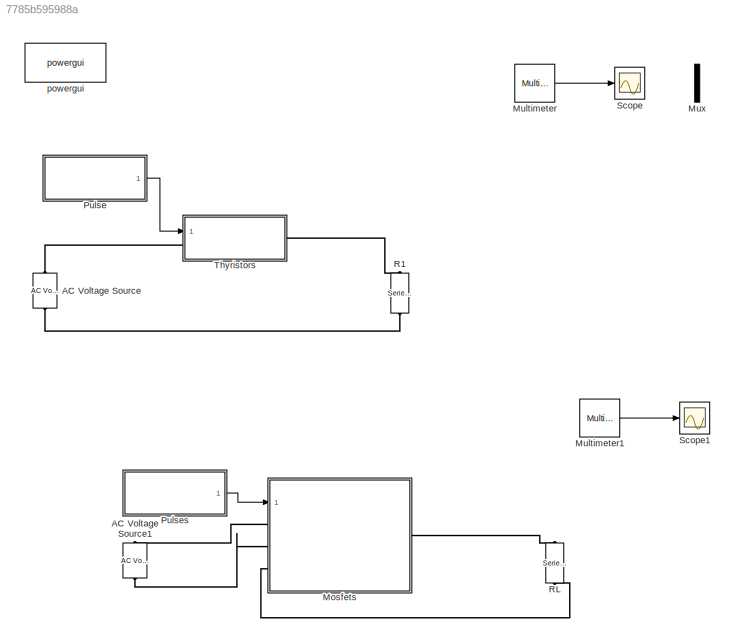
MODEL slx_7785b595988a
KIND model
CONFIG AbsTol = auto
CONFIG EnableMultiTasking = off
CONFIG FixedStep = auto
CONFIG MaxStep = 1e-4
CONFIG MinStep = auto
CONFIG RelTol = 1e-3
CONFIG SampleTimeConstraint = Unconstrained
CONFIG SolverName = VariableStepAuto
CONFIG StartTime = 0.0
CONFIG StopTime = 0.2
BLOCK [Reference] AC Voltage Source  REF=spsACVoltageSourceLib/AC Voltage Source
  Ports = [0, 0, 0, 0, 0, 1, 1]
  SourceBlock = spsACVoltageSourceLib/AC Voltage Source
  SourceProductBaseCode = PS
  SourceType = AC Voltage Source
BLOCK [Reference] AC Voltage Source1  REF=spsACVoltageSourceLib/AC Voltage Source
  Ports = [0, 0, 0, 0, 0, 1, 1]
  SourceBlock = spsACVoltageSourceLib/AC Voltage Source
  SourceProductBaseCode = PS
  SourceType = AC Voltage Source
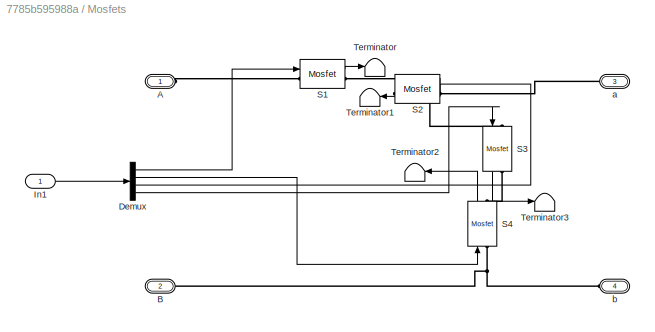
BLOCK [SubSystem] Mosfets
  Ports = [1, 0, 0, 0, 0, 3, 1]
  RequestExecContextInheritance = off
BLOCK [PMIOPort] Mosfets/A
  Side = Left
BLOCK [PMIOPort] Mosfets/B
  Port = 2
  Side = Left
BLOCK [Demux] Mosfets/Demux
  Ports = [1, 4]
BLOCK [Inport] Mosfets/In1
BLOCK [Reference] Mosfets/S1  REF=spsMosfetLib/Mosfet
  Ports = [1, 1, 0, 0, 0, 1, 1]
  SourceBlock = spsMosfetLib/Mosfet
  SourceProductBaseCode = PS
  SourceType = Mosfet
BLOCK [Reference] Mosfets/S2  REF=spsMosfetLib/Mosfet
  NameLocation = top
  Ports = [1, 1, 0, 0, 0, 1, 1]
  SourceBlock = spsMosfetLib/Mosfet
  SourceProductBaseCode = PS
  SourceType = Mosfet
BLOCK [Reference] Mosfets/S3  REF=spsMosfetLib/Mosfet
  NameLocation = left
  Ports = [1, 1, 0, 0, 0, 1, 1]
  SourceBlock = spsMosfetLib/Mosfet
  SourceProductBaseCode = PS
  SourceType = Mosfet
BLOCK [Reference] Mosfets/S4  REF=spsMosfetLib/Mosfet
  NameLocation = right
  Ports = [1, 1, 0, 0, 0, 1, 1]
  SourceBlock = spsMosfetLib/Mosfet
  SourceProductBaseCode = PS
  SourceType = Mosfet
BLOCK [Terminator] Mosfets/Terminator
BLOCK [Terminator] Mosfets/Terminator1
  NameLocation = top
BLOCK [Terminator] Mosfets/Terminator2
  NameLocation = top
BLOCK [Terminator] Mosfets/Terminator3
BLOCK [PMIOPort] Mosfets/a
  NameLocation = top
  Port = 3
  Side = Right
BLOCK [PMIOPort] Mosfets/b
  NameLocation = top
  Port = 4
  Side = Left
BLOCK [Reference] Multimeter  REF=spsMultimeterLib/Multimeter
  Ports = [0, 1]
  SourceBlock = spsMultimeterLib/Multimeter
  SourceProductBaseCode = PS
  SourceType = MultimeterPSB
BLOCK [Reference] Multimeter1  REF=spsMultimeterLib/Multimeter
  Ports = [0, 1]
  SourceBlock = spsMultimeterLib/Multimeter
  SourceProductBaseCode = PS
  SourceType = MultimeterPSB
BLOCK [Mux] Mux
  DisplayOption = bar
  Inputs = 2
  Ports = [2, 1]
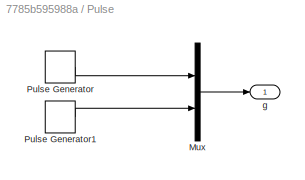
BLOCK [SubSystem] Pulse
  Ports = [0, 1]
  RequestExecContextInheritance = off
BLOCK [Mux] Pulse/Mux
  DisplayOption = bar
  Inputs = 2
  Ports = [2, 1]
BLOCK [DiscretePulseGenerator] Pulse/Pulse Generator
  Period = 1/frez
  PhaseDelay = (alpha/360)*(1/frez)
  Ports = [0, 1]
  PulseType = Time based
  PulseWidth = 5
BLOCK [DiscretePulseGenerator] Pulse/Pulse Generator1
  Period = 1/frez
  PhaseDelay = (alpha+180/360)*(1/frez)
  Ports = [0, 1]
  PulseType = Time based
  PulseWidth = 5
BLOCK [Outport] Pulse/g
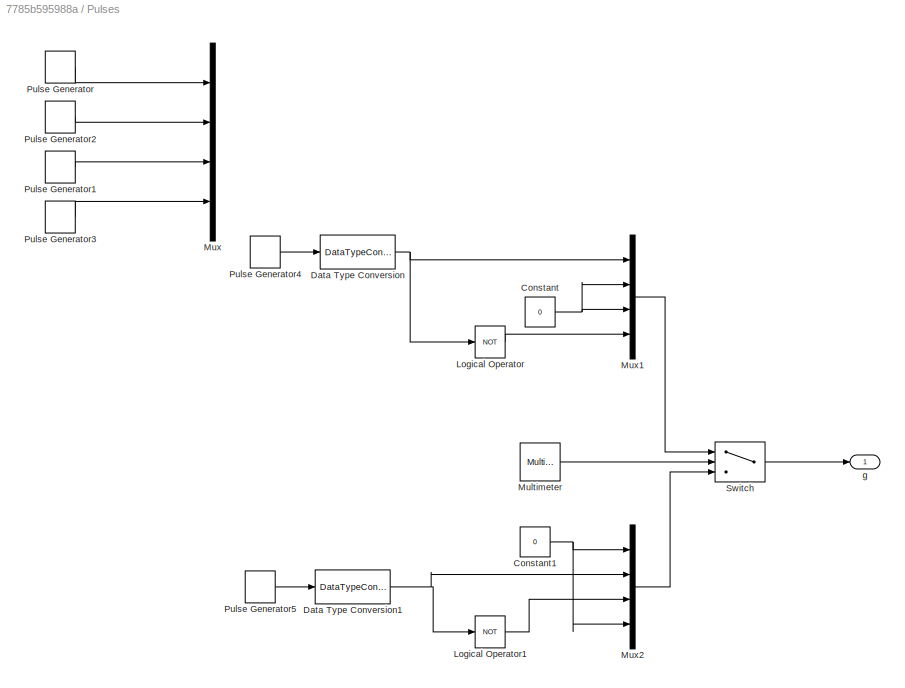
BLOCK [SubSystem] Pulses
  Ports = [0, 1]
  RequestExecContextInheritance = off
BLOCK [Constant] Pulses/Constant
  OutDataTypeStr = boolean
  Value = 0
BLOCK [Constant] Pulses/Constant1
  OutDataTypeStr = boolean
  Value = 0
BLOCK [DataTypeConversion] Pulses/Data Type Conversion
  OutDataTypeStr = boolean
  RndMeth = Floor
  SaturateOnIntegerOverflow = off
BLOCK [DataTypeConversion] Pulses/Data Type Conversion1
  OutDataTypeStr = boolean
  RndMeth = Floor
  SaturateOnIntegerOverflow = off
BLOCK [Logic] Pulses/Logical Operator
  AllPortsSameDT = off
  Operator = NOT
  OutDataTypeStr = boolean
  Ports = [1, 1]
BLOCK [Logic] Pulses/Logical Operator1
  AllPortsSameDT = off
  Operator = NOT
  OutDataTypeStr = boolean
  Ports = [1, 1]
BLOCK [Reference] Pulses/Multimeter  REF=spsMultimeterLib/Multimeter
  Ports = [0, 1]
  SourceBlock = spsMultimeterLib/Multimeter
  SourceProductBaseCode = PS
  SourceType = MultimeterPSB
BLOCK [Mux] Pulses/Mux
  DisplayOption = bar
  Ports = [4, 1]
BLOCK [Mux] Pulses/Mux1
  DisplayOption = bar
  Ports = [4, 1]
BLOCK [Mux] Pulses/Mux2
  DisplayOption = bar
  Ports = [4, 1]
BLOCK [DiscretePulseGenerator] Pulses/Pulse Generator
  Period = 1/frez
  PhaseDelay = (alpha+180)/360*(1/frez)
  Ports = [0, 1]
  PulseType = Time based
  PulseWidth = 5
BLOCK [DiscretePulseGenerator] Pulses/Pulse Generator1
  Period = 1/frez
  PhaseDelay = (alpha/360)*(1/frez)
  Ports = [0, 1]
  PulseType = Time based
  PulseWidth = 5
BLOCK [DiscretePulseGenerator] Pulses/Pulse Generator2
  Period = 1/frez
  PhaseDelay = (alpha+180)/360*(1/frez)
  Ports = [0, 1]
  PulseType = Time based
  PulseWidth = 5
BLOCK [DiscretePulseGenerator] Pulses/Pulse Generator3
  Period = 1/frez
  PhaseDelay = (alpha/360)*(1/frez)
  Ports = [0, 1]
  PulseType = Time based
  PulseWidth = 5
BLOCK [DiscretePulseGenerator] Pulses/Pulse Generator4
  Period = 1/20e3
  Ports = [0, 1]
  PulseType = Time based
  PulseWidth = 50
BLOCK [DiscretePulseGenerator] Pulses/Pulse Generator5
  Period = 1/20e3
  Ports = [0, 1]
  PulseType = Time based
  PulseWidth = 50
BLOCK [Switch] Pulses/Switch
  Criteria = u2 > Threshold
  InputSameDT = off
  SaturateOnIntegerOverflow = off
BLOCK [Outport] Pulses/g
BLOCK [Reference] R1  REF=spsSeriesRLCBranchLib/Series RLC Branch
  NameLocation = left
  Ports = [0, 0, 0, 0, 0, 1, 1]
  SourceBlock = spsSeriesRLCBranchLib/Series RLC Branch
  SourceProductBaseCode = PS
  SourceType = Series RLC Branch
BLOCK [Reference] RL  REF=spsSeriesRLCBranchLib/Series RLC Branch
  NameLocation = left
  Ports = [0, 0, 0, 0, 0, 1, 1]
  SourceBlock = spsSeriesRLCBranchLib/Series RLC Branch
  SourceProductBaseCode = PS
  SourceType = Series RLC Branch
BLOCK [Scope] Scope
  Floating = off
  NumInputPorts = 1
  Ports = [1]
  ScopeSpecificationString = Simulink.scopes.TimeScopeBlockCfg('CurrentConfiguration', extmgr.ConfigurationSet(extmgr.Configuration('Core','General UI',true),extmgr.Configuration('Core','Source UI',true),extmgr.Configuration('Sources','WiredSimulink',true),extmgr.Configuration('Visuals','Time Domain',true,'SerializedDisplays',{struct('MinYLimReal','-27.70149','MaxYLimReal','246.60248','YLabelReal','','MinYLimMag','0.00000','M...<+1483ch>
BLOCK [Scope] Scope1
  Floating = off
  NumInputPorts = 1
  Ports = [1]
  ScopeSpecificationString = Simulink.scopes.TimeScopeBlockCfg('CurrentConfiguration', extmgr.ConfigurationSet(extmgr.Configuration('Core','General UI',true),extmgr.Configuration('Core','Source UI',true),extmgr.Configuration('Sources','WiredSimulink',true,'DataLoggingVariableName','ScopeData1'),extmgr.Configuration('Visuals','Time Domain',true,'SerializedDisplays',{struct('MinYLimReal','-129828.35557','MaxYLimReal','129828.20...<+1553ch>
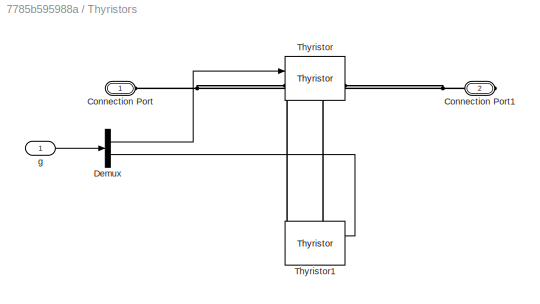
BLOCK [SubSystem] Thyristors
  Ports = [1, 0, 0, 0, 0, 1, 1]
  RequestExecContextInheritance = off
BLOCK [PMIOPort] Thyristors/Connection Port
  Side = Left
BLOCK [PMIOPort] Thyristors/Connection Port1
  NameLocation = top
  Port = 2
  Side = Right
BLOCK [Demux] Thyristors/Demux
  Outputs = 2
  Ports = [1, 2]
BLOCK [Reference] Thyristors/Thyristor  REF=spsThyristorLib/Thyristor
  Ports = [1, 1, 0, 0, 0, 1, 1]
  SourceBlock = spsThyristorLib/Thyristor
  SourceProductBaseCode = PS
  SourceType = Thyristor
BLOCK [Reference] Thyristors/Thyristor1  REF=spsThyristorLib/Thyristor
  NameLocation = top
  Ports = [1, 1, 0, 0, 0, 1, 1]
  SourceBlock = spsThyristorLib/Thyristor
  SourceProductBaseCode = PS
  SourceType = Thyristor
BLOCK [Inport] Thyristors/g
BLOCK [Reference] powergui  REF=spspowerguiLib/powergui
  Ports = []
  Priority = 1
  SourceBlock = spspowerguiLib/powergui
  SourceProductBaseCode = PS
  SourceType = PSB option menu block
LINE Mosfets/Demux:1 -> Mosfets/S1:1
LINE Mosfets/Demux:2 -> Mosfets/S4:1
LINE Mosfets/Demux:3 -> Mosfets/S2:1
LINE Mosfets/Demux:4 -> Mosfets/S3:1
LINE Mosfets/In1:1 -> Mosfets/Demux:1
LINE Mosfets/S1:1 -> Mosfets/Terminator:1
LINE Mosfets/S2:1 -> Mosfets/Terminator1:1
LINE Mosfets/S3:1 -> Mosfets/Terminator3:1
LINE Mosfets/S4:1 -> Mosfets/Terminator2:1
LINE Multimeter1:1 -> Scope1:1
LINE Multimeter:1 -> Scope:1
LINE Pulse/Mux:1 -> Pulse/g:1
LINE Pulse/Pulse Generator1:1 -> Pulse/Mux:2
LINE Pulse/Pulse Generator:1 -> Pulse/Mux:1
LINE Pulse:1 -> Thyristors:1
NET Pulses/Constant1:1 -> Pulses/Mux2:1, Pulses/Mux2:4
NET Pulses/Constant:1 -> Pulses/Mux1:2, Pulses/Mux1:3
NET Pulses/Data Type Conversion1:1 -> Pulses/Logical Operator1:1, Pulses/Mux2:2
NET Pulses/Data Type Conversion:1 -> Pulses/Logical Operator:1, Pulses/Mux1:1
LINE Pulses/Logical Operator1:1 -> Pulses/Mux2:3
LINE Pulses/Logical Operator:1 -> Pulses/Mux1:4
LINE Pulses/Multimeter:1 -> Pulses/Switch:2
LINE Pulses/Mux1:1 -> Pulses/Switch:1
LINE Pulses/Mux2:1 -> Pulses/Switch:3
LINE Pulses/Pulse Generator1:1 -> Pulses/Mux:3
LINE Pulses/Pulse Generator2:1 -> Pulses/Mux:2
LINE Pulses/Pulse Generator3:1 -> Pulses/Mux:4
LINE Pulses/Pulse Generator4:1 -> Pulses/Data Type Conversion:1
LINE Pulses/Pulse Generator5:1 -> Pulses/Data Type Conversion1:1
LINE Pulses/Pulse Generator:1 -> Pulses/Mux:1
LINE Pulses/Switch:1 -> Pulses/g:1
LINE Pulses:1 -> Mosfets:1
LINE Thyristors/Demux:1 -> Thyristors/Thyristor:1
LINE Thyristors/Demux:2 -> Thyristors/Thyristor1:1
LINE Thyristors/g:1 -> Thyristors/Demux:1
PLINE AC Voltage Source1:LConn1 -- Mosfets:LConn2
PLINE AC Voltage Source1:RConn1 -- Mosfets:LConn1
PLINE AC Voltage Source:LConn1 -- R1:RConn1
PLINE AC Voltage Source:RConn1 -- Thyristors:LConn1
PLINE Mosfets/A:RConn1 -- Mosfets/S1:LConn1
PNET net1: Mosfets/B:RConn1 -- Mosfets/S4:LConn1 -- Mosfets/b:RConn1
PLINE Mosfets/S1:RConn1 -- Mosfets/S2:RConn1
PNET net2: Mosfets/S2:LConn1 -- Mosfets/S3:LConn1 -- Mosfets/a:RConn1
PLINE Mosfets/S3:RConn1 -- Mosfets/S4:RConn1
PLINE Mosfets:LConn3 -- RL:RConn1
PLINE Mosfets:RConn1 -- RL:LConn1
PLINE R1:LConn1 -- Thyristors:RConn1
PNET net3: Thyristors/Connection Port1:RConn1 -- Thyristors/Thyristor1:LConn1 -- Thyristors/Thyristor:RConn1
PNET net4: Thyristors/Connection Port:RConn1 -- Thyristors/Thyristor1:RConn1 -- Thyristors/Thyristor:LConn1
note: NET lines group one-source signal fan-out (src -> all destinations, sorted); 1:1 wires keep LINE; PNET lines group multi-terminal physical nets as a canonical sorted terminal list (undirected conserving connections); 2-terminal nets keep the pairwise PLINE form
